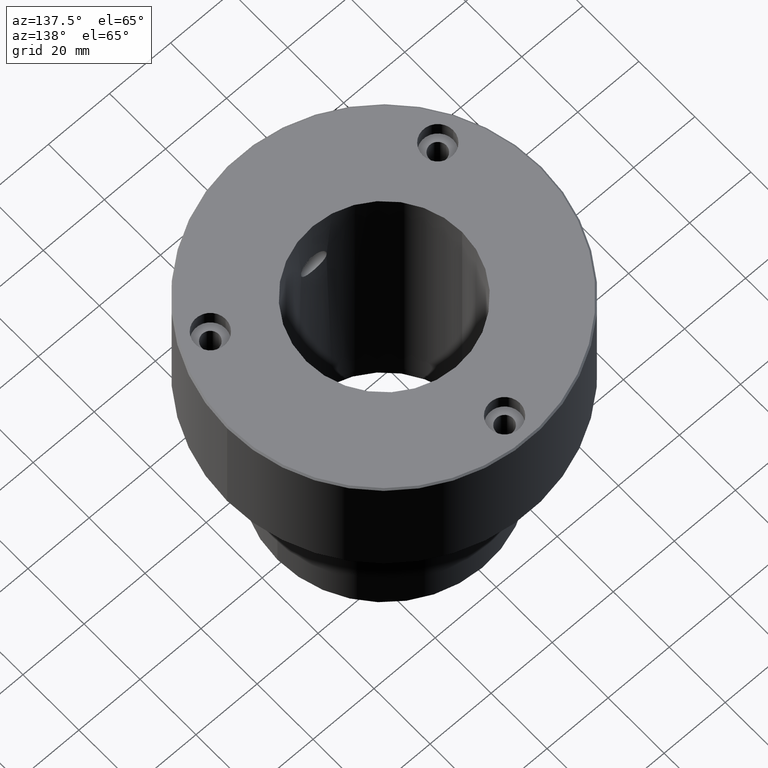
[diagram: clean part render]
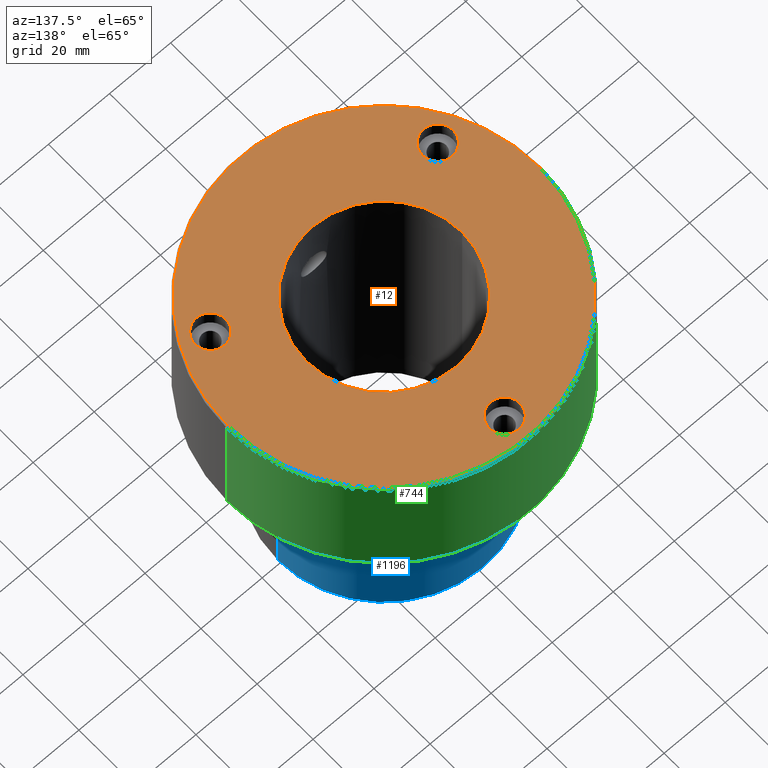
[diagram: same view with three faces highlighted in distinct colors, each labeled with its STEP entity id]
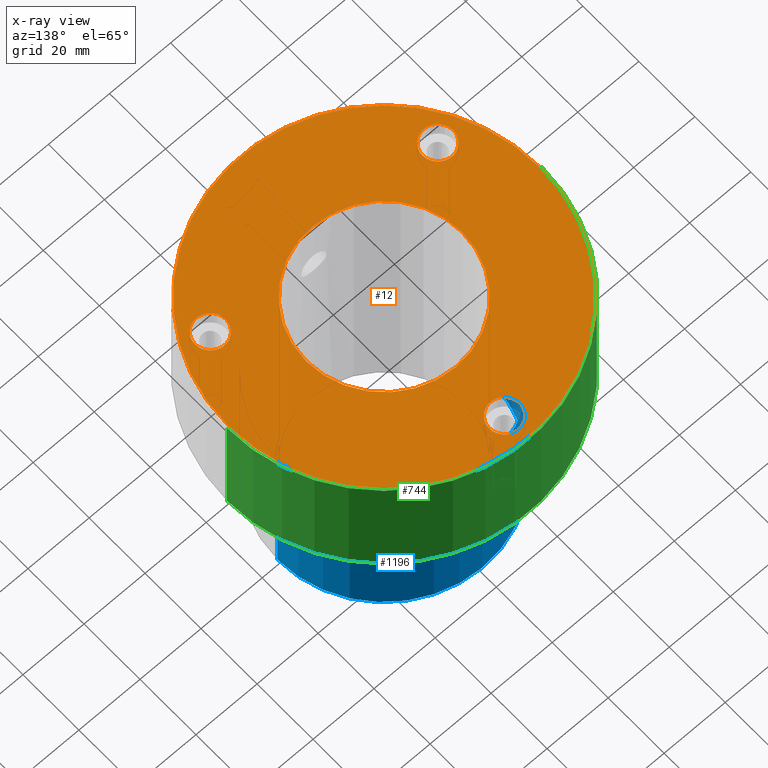
[diagram: x-ray of the same camera — body ghosted, the three highlighted faces saturated]
A machine part, auxiliary view with three faces highlighted in distinct colors.
The next image is the same camera in x-ray (body ghosted, the three faces saturated) — at least one of them is partly hidden behind the body in this view.
Their STEP definitions:

[orange] entity #12 — the highlighted planar face has unit normal (0, -0, 1).
#8 = FACE_BOUND ( 'NONE', #899, .T. ) ;
#9 = DIRECTION ( 'NONE',  ( -0.000000000000000000, -0.000000000000000000, 1.000000000000000000 ) ) ;
#12 = ADVANCED_FACE ( 'NONE', ( #759, #1153, #8, #280, #580 ), #962, .T. ) ;
#28 = VERTEX_POINT ( 'NONE', #490 ) ;
#33 = ORIENTED_EDGE ( 'NONE', *, *, #457, .F. ) ;
#36 = ORIENTED_EDGE ( 'NONE', *, *, #885, .F. ) ;
#77 = DIRECTION ( 'NONE',  ( 0.000000000000000000, 0.000000000000000000, -1.000000000000000000 ) ) ;
#105 = DIRECTION ( 'NONE',  ( 1.000000000000000000, 0.000000000000000000, 0.000000000000000000 ) ) ;
#110 = CARTESIAN_POINT ( 'NONE',  ( 0.000000000000000000, 43.00000000000000000, 0.000000000000000000 ) ) ;
#125 = CIRCLE ( 'NONE', #866, 51.00000000000001421 ) ;
#130 = ORIENTED_EDGE ( 'NONE', *, *, #1068, .F. ) ;
#143 = CIRCLE ( 'NONE', #303, 5.000000000000004441 ) ;
#147 = EDGE_LOOP ( 'NONE', ( #571, #36 ) ) ;
#174 = EDGE_CURVE ( 'NONE', #339, #1120, #252, .T. ) ;
#176 = CARTESIAN_POINT ( 'NONE',  ( 32.23909236273075862, -21.50000000000015987, 0.000000000000000000 ) ) ;
#179 = CIRCLE ( 'NONE', #945, 51.00000000000001421 ) ;
#197 = DIRECTION ( 'NONE',  ( 0.000000000000000000, -0.000000000000000000, 1.000000000000000000 ) ) ;
#199 = DIRECTION ( 'NONE',  ( -0.000000000000000000, -0.000000000000000000, 1.000000000000000000 ) ) ;
#209 = DIRECTION ( 'NONE',  ( -0.000000000000000000, -0.000000000000000000, 1.000000000000000000 ) ) ;
#238 = CIRCLE ( 'NONE', #623, 5.000000000000004441 ) ;
#252 = CIRCLE ( 'NONE', #1174, 5.000000000000004441 ) ;
#275 = CIRCLE ( 'NONE', #506, 25.50000000000000000 ) ;
#280 = FACE_BOUND ( 'NONE', #1085, .T. ) ;
#291 = DIRECTION ( 'NONE',  ( 1.000000000000000000, 0.000000000000000000, 0.000000000000000000 ) ) ;
#295 = CARTESIAN_POINT ( 'NONE',  ( 37.23909236273076573, -21.50000000000015987, 0.000000000000000000 ) ) ;
#303 = AXIS2_PLACEMENT_3D ( 'NONE', #1224, #633, #361 ) ;
#338 = CARTESIAN_POINT ( 'NONE',  ( -32.23909236273090073, -21.49999999999991118, 0.000000000000000000 ) ) ;
#339 = VERTEX_POINT ( 'NONE', #1007 ) ;
#353 = DIRECTION ( 'NONE',  ( -1.000000000000000000, 0.000000000000000000, 0.000000000000000000 ) ) ;
#361 = DIRECTION ( 'NONE',  ( 1.000000000000000000, 0.000000000000000000, 0.000000000000000000 ) ) ;
#382 = CARTESIAN_POINT ( 'NONE',  ( 37.23909236273076573, -21.50000000000015987, 0.000000000000000000 ) ) ;
#389 = EDGE_LOOP ( 'NONE', ( #702, #553 ) ) ;
#444 = AXIS2_PLACEMENT_3D ( 'NONE', #295, #1043, #755 ) ;
#450 = EDGE_LOOP ( 'NONE', ( #654, #33 ) ) ;
#453 = CARTESIAN_POINT ( 'NONE',  ( 0.000000000000000000, 0.000000000000000000, 0.000000000000000000 ) ) ;
#457 = EDGE_CURVE ( 'NONE', #579, #1202, #143, .T. ) ;
#476 = CARTESIAN_POINT ( 'NONE',  ( -25.50000000000000000, 0.000000000000000000, 0.000000000000000000 ) ) ;
#490 = CARTESIAN_POINT ( 'NONE',  ( 51.00000000000001421, 6.276314845630186598E-15, 0.000000000000000000 ) ) ;
#498 = DIRECTION ( 'NONE',  ( 1.000000000000000000, 0.000000000000000000, 0.000000000000000000 ) ) ;
#506 = AXIS2_PLACEMENT_3D ( 'NONE', #453, #1215, #723 ) ;
#553 = ORIENTED_EDGE ( 'NONE', *, *, #1051, .T. ) ;
#567 = DIRECTION ( 'NONE',  ( 1.000000000000000000, 0.000000000000000000, 0.000000000000000000 ) ) ;
#571 = ORIENTED_EDGE ( 'NONE', *, *, #174, .F. ) ;
#579 = VERTEX_POINT ( 'NONE', #619 ) ;
#580 = FACE_OUTER_BOUND ( 'NONE', #389, .T. ) ;
#597 = CARTESIAN_POINT ( 'NONE',  ( 5.000000000000000888, 43.00000000000000000, 0.000000000000000000 ) ) ;
#599 = ORIENTED_EDGE ( 'NONE', *, *, #1185, .F. ) ;
#603 = VERTEX_POINT ( 'NONE', #1087 ) ;
#619 = CARTESIAN_POINT ( 'NONE',  ( -42.23909236273090784, -21.49999999999991118, 0.000000000000000000 ) ) ;
#623 = AXIS2_PLACEMENT_3D ( 'NONE', #1140, #1235, #1122 ) ;
#633 = DIRECTION ( 'NONE',  ( -0.000000000000000000, -0.000000000000000000, 1.000000000000000000 ) ) ;
#645 = VERTEX_POINT ( 'NONE', #891 ) ;
#654 = ORIENTED_EDGE ( 'NONE', *, *, #682, .F. ) ;
#662 = AXIS2_PLACEMENT_3D ( 'NONE', #110, #199, #498 ) ;
#668 = CARTESIAN_POINT ( 'NONE',  ( -5.000000000000000888, 43.00000000000000000, 0.000000000000000000 ) ) ;
#676 = CARTESIAN_POINT ( 'NONE',  ( 0.000000000000000000, 0.000000000000000000, 0.000000000000000000 ) ) ;
#682 = EDGE_CURVE ( 'NONE', #1202, #579, #238, .T. ) ;
#685 = CIRCLE ( 'NONE', #444, 5.000000000000004441 ) ;
#687 = CIRCLE ( 'NONE', #662, 5.000000000000000888 ) ;
#702 = ORIENTED_EDGE ( 'NONE', *, *, #861, .T. ) ;
#718 = CIRCLE ( 'NONE', #886, 5.000000000000000888 ) ;
#723 = DIRECTION ( 'NONE',  ( -1.000000000000000000, 0.000000000000000000, 0.000000000000000000 ) ) ;
#731 = ORIENTED_EDGE ( 'NONE', *, *, #766, .T. ) ;
#755 = DIRECTION ( 'NONE',  ( 1.000000000000000000, 0.000000000000000000, 0.000000000000000000 ) ) ;
#759 = FACE_BOUND ( 'NONE', #450, .T. ) ;
#766 = EDGE_CURVE ( 'NONE', #1121, #603, #275, .T. ) ;
#772 = EDGE_CURVE ( 'NONE', #603, #1121, #991, .T. ) ;
#837 = CARTESIAN_POINT ( 'NONE',  ( 0.000000000000000000, 0.000000000000000000, 0.000000000000000000 ) ) ;
#861 = EDGE_CURVE ( 'NONE', #645, #28, #125, .T. ) ;
#866 = AXIS2_PLACEMENT_3D ( 'NONE', #1067, #209, #870 ) ;
#870 = DIRECTION ( 'NONE',  ( 1.000000000000000000, 0.000000000000000000, 0.000000000000000000 ) ) ;
#885 = EDGE_CURVE ( 'NONE', #1120, #339, #685, .T. ) ;
#886 = AXIS2_PLACEMENT_3D ( 'NONE', #948, #1052, #567 ) ;
#891 = CARTESIAN_POINT ( 'NONE',  ( -51.00000000000001421, 0.000000000000000000, 0.000000000000000000 ) ) ;
#899 = EDGE_LOOP ( 'NONE', ( #599, #130 ) ) ;
#945 = AXIS2_PLACEMENT_3D ( 'NONE', #676, #982, #1066 ) ;
#948 = CARTESIAN_POINT ( 'NONE',  ( 0.000000000000000000, 43.00000000000000000, 0.000000000000000000 ) ) ;
#952 = ORIENTED_EDGE ( 'NONE', *, *, #772, .T. ) ;
#962 = PLANE ( 'NONE',  #1070 ) ;
#982 = DIRECTION ( 'NONE',  ( -0.000000000000000000, -0.000000000000000000, 1.000000000000000000 ) ) ;
#991 = CIRCLE ( 'NONE', #1092, 25.50000000000000000 ) ;
#994 = VERTEX_POINT ( 'NONE', #597 ) ;
#1007 = CARTESIAN_POINT ( 'NONE',  ( 42.23909236273076573, -21.50000000000015987, 0.000000000000000000 ) ) ;
#1043 = DIRECTION ( 'NONE',  ( -0.000000000000000000, -0.000000000000000000, 1.000000000000000000 ) ) ;
#1051 = EDGE_CURVE ( 'NONE', #28, #645, #179, .T. ) ;
#1052 = DIRECTION ( 'NONE',  ( -0.000000000000000000, -0.000000000000000000, 1.000000000000000000 ) ) ;
#1066 = DIRECTION ( 'NONE',  ( 1.000000000000000000, 0.000000000000000000, 0.000000000000000000 ) ) ;
#1067 = CARTESIAN_POINT ( 'NONE',  ( 0.000000000000000000, 0.000000000000000000, 0.000000000000000000 ) ) ;
#1068 = EDGE_CURVE ( 'NONE', #1103, #994, #687, .T. ) ;
#1070 = AXIS2_PLACEMENT_3D ( 'NONE', #1252, #197, #105 ) ;
#1085 = EDGE_LOOP ( 'NONE', ( #731, #952 ) ) ;
#1087 = CARTESIAN_POINT ( 'NONE',  ( 25.50000000000000000, 3.122849337825750222E-15, 0.000000000000000000 ) ) ;
#1092 = AXIS2_PLACEMENT_3D ( 'NONE', #837, #77, #353 ) ;
#1103 = VERTEX_POINT ( 'NONE', #668 ) ;
#1120 = VERTEX_POINT ( 'NONE', #176 ) ;
#1121 = VERTEX_POINT ( 'NONE', #476 ) ;
#1122 = DIRECTION ( 'NONE',  ( 1.000000000000000000, 0.000000000000000000, 0.000000000000000000 ) ) ;
#1140 = CARTESIAN_POINT ( 'NONE',  ( -37.23909236273090073, -21.49999999999991118, 0.000000000000000000 ) ) ;
#1153 = FACE_BOUND ( 'NONE', #147, .T. ) ;
#1174 = AXIS2_PLACEMENT_3D ( 'NONE', #382, #9, #291 ) ;
#1185 = EDGE_CURVE ( 'NONE', #994, #1103, #718, .T. ) ;
#1202 = VERTEX_POINT ( 'NONE', #338 ) ;
#1215 = DIRECTION ( 'NONE',  ( 0.000000000000000000, 0.000000000000000000, -1.000000000000000000 ) ) ;
#1224 = CARTESIAN_POINT ( 'NONE',  ( -37.23909236273090073, -21.49999999999991118, 0.000000000000000000 ) ) ;
#1235 = DIRECTION ( 'NONE',  ( -0.000000000000000000, -0.000000000000000000, 1.000000000000000000 ) ) ;
#1252 = CARTESIAN_POINT ( 'NONE',  ( 0.000000000000000000, 0.000000000000000000, 0.000000000000000000 ) ) ;

[blue] entity #1196 — the highlighted cylindrical surface (partial cylindrical patch) has radius 35 mm, axis along (-0, -0, 1).
#42 = VERTEX_POINT ( 'NONE', #873 ) ;
#70 = ORIENTED_EDGE ( 'NONE', *, *, #515, .T. ) ;
#126 = CARTESIAN_POINT ( 'NONE',  ( 0.000000000000000000, 0.000000000000000000, -99.50000000000004263 ) ) ;
#145 = CARTESIAN_POINT ( 'NONE',  ( 0.000000000000000000, 0.000000000000000000, 0.000000000000000000 ) ) ;
#150 = DIRECTION ( 'NONE',  ( -0.000000000000000000, -0.000000000000000000, 1.000000000000000000 ) ) ;
#183 = ORIENTED_EDGE ( 'NONE', *, *, #547, .F. ) ;
#254 = FACE_OUTER_BOUND ( 'NONE', #1022, .T. ) ;
#255 = AXIS2_PLACEMENT_3D ( 'NONE', #700, #150, #328 ) ;
#318 = EDGE_CURVE ( 'NONE', #42, #428, #406, .T. ) ;
#328 = DIRECTION ( 'NONE',  ( 1.000000000000000000, 0.000000000000000000, 0.000000000000000000 ) ) ;
#395 = VERTEX_POINT ( 'NONE', #629 ) ;
#406 = CIRCLE ( 'NONE', #1109, 35.00000000000000000 ) ;
#411 = DIRECTION ( 'NONE',  ( -0.000000000000000000, -0.000000000000000000, 1.000000000000000000 ) ) ;
#428 = VERTEX_POINT ( 'NONE', #1114 ) ;
#449 = LINE ( 'NONE', #737, #608 ) ;
#515 = EDGE_CURVE ( 'NONE', #428, #726, #449, .T. ) ;
#528 = EDGE_CURVE ( 'NONE', #395, #726, #841, .T. ) ;
#529 = DIRECTION ( 'NONE',  ( -0.000000000000000000, -0.000000000000000000, 1.000000000000000000 ) ) ;
#547 = EDGE_CURVE ( 'NONE', #42, #395, #716, .T. ) ;
#608 = VECTOR ( 'NONE', #931, 1000.000000000000000 ) ;
#612 = ORIENTED_EDGE ( 'NONE', *, *, #528, .F. ) ;
#629 = CARTESIAN_POINT ( 'NONE',  ( 35.00000000000000000, 0.000000000000000000, -42.00000000000000000 ) ) ;
#700 = CARTESIAN_POINT ( 'NONE',  ( 0.000000000000000000, 0.000000000000000000, -42.00000000000000000 ) ) ;
#716 = LINE ( 'NONE', #1018, #1029 ) ;
#726 = VERTEX_POINT ( 'NONE', #1128 ) ;
#737 = CARTESIAN_POINT ( 'NONE',  ( -35.00000000000000000, 4.286263797015736496E-15, 0.000000000000000000 ) ) ;
#764 = AXIS2_PLACEMENT_3D ( 'NONE', #145, #529, #814 ) ;
#794 = DIRECTION ( 'NONE',  ( -1.000000000000000000, 0.000000000000000000, 0.000000000000000000 ) ) ;
#814 = DIRECTION ( 'NONE',  ( 1.000000000000000000, 0.000000000000000000, 0.000000000000000000 ) ) ;
#841 = CIRCLE ( 'NONE', #255, 35.00000000000000000 ) ;
#873 = CARTESIAN_POINT ( 'NONE',  ( 35.00000000000000000, 0.000000000000000000, -99.50000000000004263 ) ) ;
#931 = DIRECTION ( 'NONE',  ( -0.000000000000000000, -0.000000000000000000, 1.000000000000000000 ) ) ;
#1005 = DIRECTION ( 'NONE',  ( -0.000000000000000000, -0.000000000000000000, 1.000000000000000000 ) ) ;
#1009 = CYLINDRICAL_SURFACE ( 'NONE', #764, 35.00000000000000000 ) ;
#1018 = CARTESIAN_POINT ( 'NONE',  ( 35.00000000000000000, 0.000000000000000000, 0.000000000000000000 ) ) ;
#1022 = EDGE_LOOP ( 'NONE', ( #1232, #70, #612, #183 ) ) ;
#1029 = VECTOR ( 'NONE', #1005, 1000.000000000000000 ) ;
#1109 = AXIS2_PLACEMENT_3D ( 'NONE', #126, #411, #794 ) ;
#1114 = CARTESIAN_POINT ( 'NONE',  ( -35.00000000000000000, 4.286263797015736496E-15, -99.50000000000004263 ) ) ;
#1128 = CARTESIAN_POINT ( 'NONE',  ( -35.00000000000000000, 4.286263797015736496E-15, -42.00000000000000000 ) ) ;
#1196 = ADVANCED_FACE ( 'NONE', ( #254 ), #1009, .T. ) ;
#1232 = ORIENTED_EDGE ( 'NONE', *, *, #318, .T. ) ;

[green] entity #744 — the highlighted cylindrical surface (partial cylindrical patch) has radius 51.5 mm, axis along (-0, -0, 1).
#21 = CIRCLE ( 'NONE', #1148, 51.50000000000000000 ) ;
#37 = VECTOR ( 'NONE', #564, 1000.000000000000000 ) ;
#47 = ORIENTED_EDGE ( 'NONE', *, *, #807, .T. ) ;
#87 = ORIENTED_EDGE ( 'NONE', *, *, #194, .T. ) ;
#161 = AXIS2_PLACEMENT_3D ( 'NONE', #460, #653, #542 ) ;
#162 = CYLINDRICAL_SURFACE ( 'NONE', #161, 51.50000000000000000 ) ;
#172 = FACE_OUTER_BOUND ( 'NONE', #984, .T. ) ;
#194 = EDGE_CURVE ( 'NONE', #1099, #888, #736, .T. ) ;
#211 = EDGE_CURVE ( 'NONE', #334, #888, #1137, .T. ) ;
#263 = EDGE_CURVE ( 'NONE', #334, #757, #21, .T. ) ;
#334 = VERTEX_POINT ( 'NONE', #611 ) ;
#385 = DIRECTION ( 'NONE',  ( -0.000000000000000000, -0.000000000000000000, 1.000000000000000000 ) ) ;
#460 = CARTESIAN_POINT ( 'NONE',  ( 0.000000000000000000, 0.000000000000000000, 0.000000000000000000 ) ) ;
#470 = CARTESIAN_POINT ( 'NONE',  ( -51.50000000000000000, 6.306931015608868807E-15, 0.000000000000000000 ) ) ;
#477 = CARTESIAN_POINT ( 'NONE',  ( 51.50000000000000000, 0.000000000000000000, -0.5000000000000004441 ) ) ;
#524 = VECTOR ( 'NONE', #385, 1000.000000000000000 ) ;
#542 = DIRECTION ( 'NONE',  ( 1.000000000000000000, 0.000000000000000000, 0.000000000000000000 ) ) ;
#550 = CARTESIAN_POINT ( 'NONE',  ( -51.50000000000000000, 6.306931015608868807E-15, -42.00000000000000000 ) ) ;
#564 = DIRECTION ( 'NONE',  ( -0.000000000000000000, -0.000000000000000000, 1.000000000000000000 ) ) ;
#611 = CARTESIAN_POINT ( 'NONE',  ( 51.50000000000000000, 0.000000000000000000, -42.00000000000000000 ) ) ;
#653 = DIRECTION ( 'NONE',  ( -0.000000000000000000, -0.000000000000000000, 1.000000000000000000 ) ) ;
#675 = DIRECTION ( 'NONE',  ( 1.000000000000000000, 0.000000000000000000, 0.000000000000000000 ) ) ;
#688 = ORIENTED_EDGE ( 'NONE', *, *, #211, .F. ) ;
#696 = DIRECTION ( 'NONE',  ( 1.000000000000000000, 0.000000000000000000, 0.000000000000000000 ) ) ;
#736 = CIRCLE ( 'NONE', #1010, 51.50000000000000000 ) ;
#744 = ADVANCED_FACE ( 'NONE', ( #172 ), #162, .T. ) ;
#753 = DIRECTION ( 'NONE',  ( 0.000000000000000000, 0.000000000000000000, -1.000000000000000000 ) ) ;
#757 = VERTEX_POINT ( 'NONE', #550 ) ;
#762 = CARTESIAN_POINT ( 'NONE',  ( -51.50000000000000000, 6.306931015608868807E-15, -0.5000000000000004441 ) ) ;
#779 = CARTESIAN_POINT ( 'NONE',  ( 51.50000000000000000, 0.000000000000000000, 0.000000000000000000 ) ) ;
#807 = EDGE_CURVE ( 'NONE', #757, #1099, #957, .T. ) ;
#865 = CARTESIAN_POINT ( 'NONE',  ( 0.000000000000000000, 0.000000000000000000, -0.5000000000000004441 ) ) ;
#888 = VERTEX_POINT ( 'NONE', #477 ) ;
#893 = DIRECTION ( 'NONE',  ( -0.000000000000000000, -0.000000000000000000, 1.000000000000000000 ) ) ;
#957 = LINE ( 'NONE', #470, #524 ) ;
#984 = EDGE_LOOP ( 'NONE', ( #1101, #47, #87, #688 ) ) ;
#1010 = AXIS2_PLACEMENT_3D ( 'NONE', #865, #753, #675 ) ;
#1082 = CARTESIAN_POINT ( 'NONE',  ( 0.000000000000000000, 0.000000000000000000, -42.00000000000000000 ) ) ;
#1099 = VERTEX_POINT ( 'NONE', #762 ) ;
#1101 = ORIENTED_EDGE ( 'NONE', *, *, #263, .T. ) ;
#1137 = LINE ( 'NONE', #779, #37 ) ;
#1148 = AXIS2_PLACEMENT_3D ( 'NONE', #1082, #893, #696 ) ;